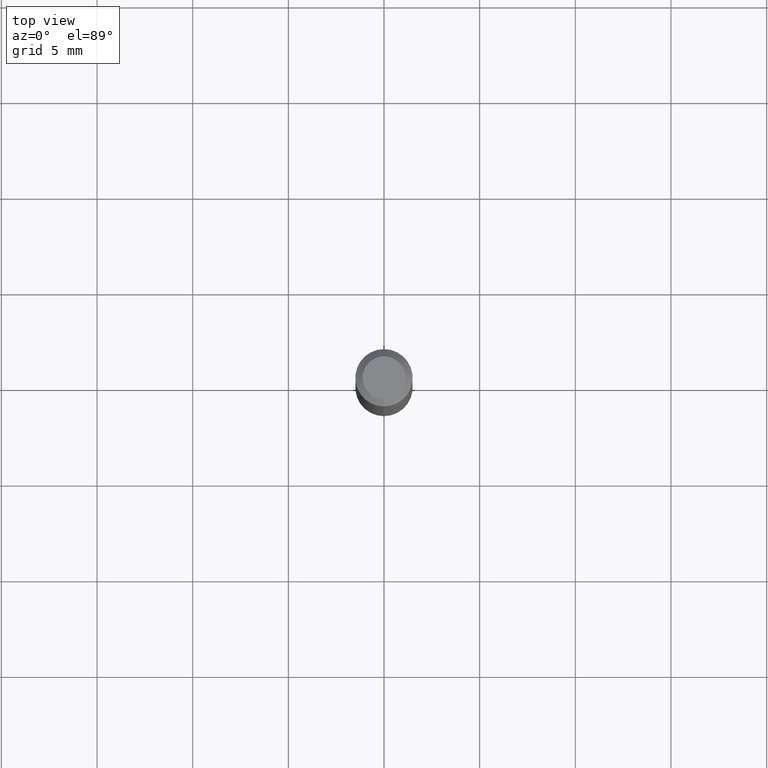
[diagram: clean part render]
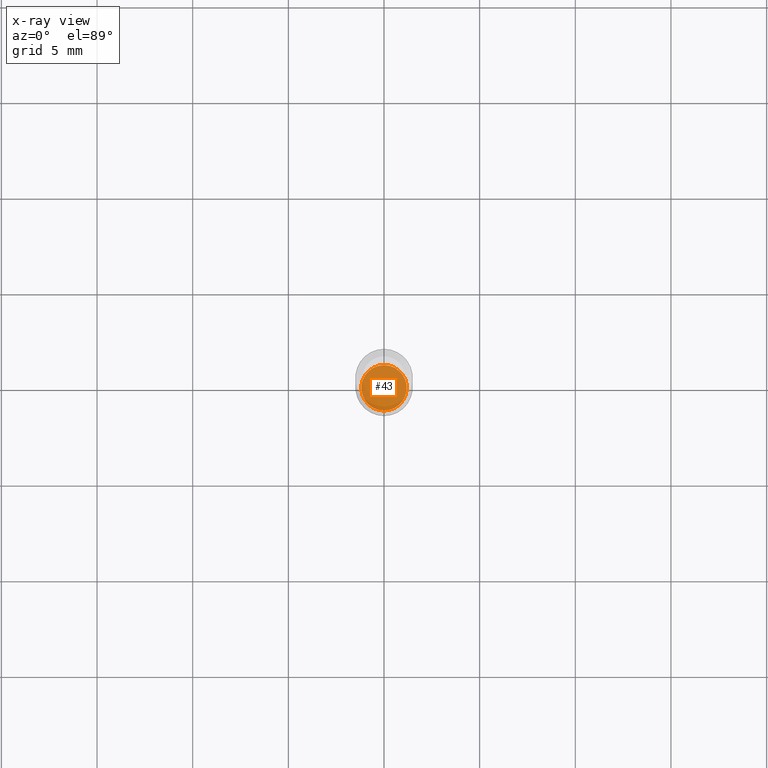
[diagram: x-ray — body ghosted, one internal face saturated and labeled with its STEP entity id]
A machine part, top view, then the same camera in x-ray: the body is ghosted and one INTERNAL B-rep face — a face not visible from any outside direction — is saturated and labeled: STEP entity #43.
In plain terms, the highlighted planar face has unit normal (-0, 0, 1).
Its self-contained STEP definition (entity closure, byte-faithful):
#38 = AXIS2_PLACEMENT_3D ( 'NONE', #79, #114, #343 ) ;
#43 = ADVANCED_FACE ( 'NONE', ( #136 ), #292, .F. ) ;
#67 = DIRECTION ( 'NONE',  ( -2.445405226276607927E-29, 3.491572388890901817E-15, 1.000000000000000000 ) ) ;
#79 = CARTESIAN_POINT ( 'NONE',  ( 2.965298377383015246E-29, -4.233880678769106366E-15, -1.212599999999999900 ) ) ;
#90 = CIRCLE ( 'NONE', #38, 0.04674999999999999295 ) ;
#100 = DIRECTION ( 'NONE',  ( -6.982962677686265922E-15, -1.000000000000000000, 3.491572388890901817E-15 ) ) ;
#105 = VERTEX_POINT ( 'NONE', #334 ) ;
#114 = DIRECTION ( 'NONE',  ( -2.445405226276608487E-29, 3.491572388890901817E-15, 1.000000000000000000 ) ) ;
#136 = FACE_OUTER_BOUND ( 'NONE', #295, .T. ) ;
#153 = CARTESIAN_POINT ( 'NONE',  ( 3.339550858072768183E-16, 0.04674999999999576022, -1.212600000000000122 ) ) ;
#163 = EDGE_CURVE ( 'NONE', #105, #299, #211, .T. ) ;
#186 = ORIENTED_EDGE ( 'NONE', *, *, #206, .F. ) ;
#206 = EDGE_CURVE ( 'NONE', #299, #105, #90, .T. ) ;
#211 = CIRCLE ( 'NONE', #248, 0.04674999999999999295 ) ;
#220 = CARTESIAN_POINT ( 'NONE',  ( 2.965298377383015246E-29, -4.233880678769106366E-15, -1.212599999999999900 ) ) ;
#248 = AXIS2_PLACEMENT_3D ( 'NONE', #220, #376, #472 ) ;
#252 = ORIENTED_EDGE ( 'NONE', *, *, #163, .F. ) ;
#292 = PLANE ( 'NONE',  #492 ) ;
#295 = EDGE_LOOP ( 'NONE', ( #252, #186 ) ) ;
#299 = VERTEX_POINT ( 'NONE', #153 ) ;
#334 = CARTESIAN_POINT ( 'NONE',  ( -3.264535051818032208E-16, -0.04675000000000423261, -1.212599999999999900 ) ) ;
#343 = DIRECTION ( 'NONE',  ( -6.982962677686266711E-15, -1.000000000000000000, 2.921762560068730989E-15 ) ) ;
#376 = DIRECTION ( 'NONE',  ( -2.445405226276608487E-29, 3.491572388890901817E-15, 1.000000000000000000 ) ) ;
#450 = CARTESIAN_POINT ( 'NONE',  ( 2.965298377383015246E-29, -4.233880678769106366E-15, -1.212599999999999900 ) ) ;
#472 = DIRECTION ( 'NONE',  ( -6.982962677686266711E-15, -1.000000000000000000, 2.921762560068730989E-15 ) ) ;
#492 = AXIS2_PLACEMENT_3D ( 'NONE', #450, #67, #100 ) ;